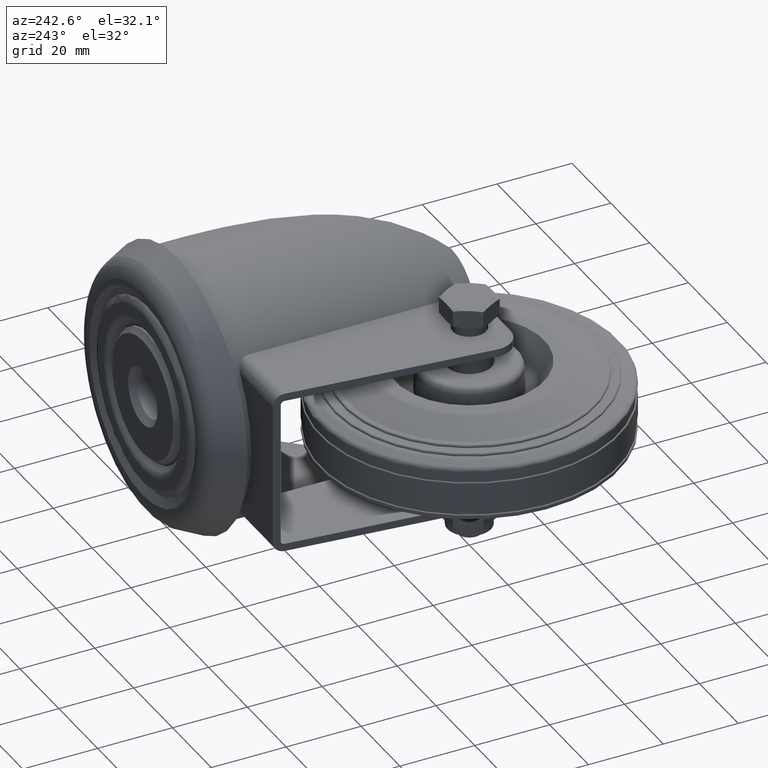
[diagram: clean part render]
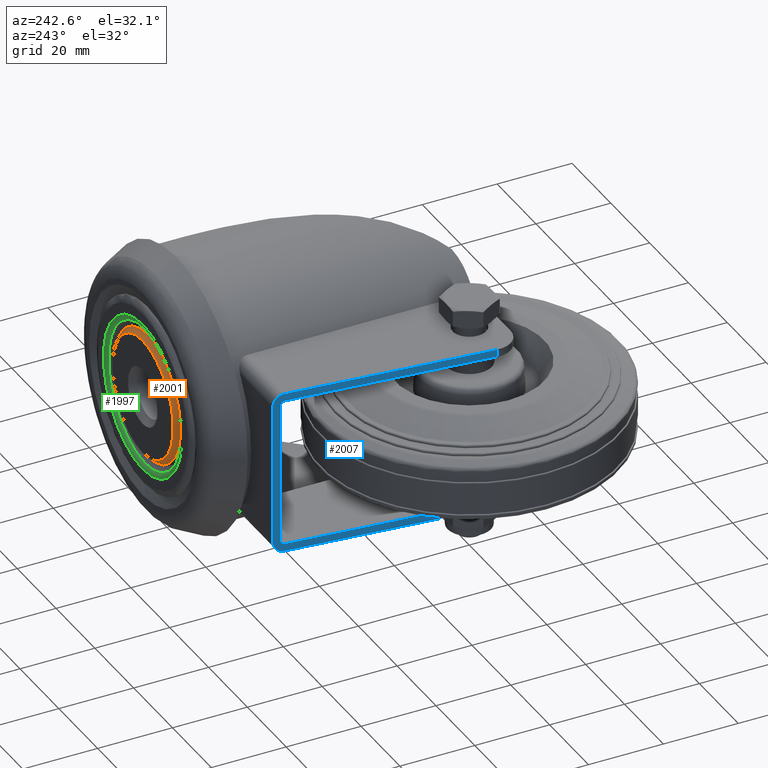
[diagram: same view with three faces highlighted in distinct colors, each labeled with its STEP entity id]
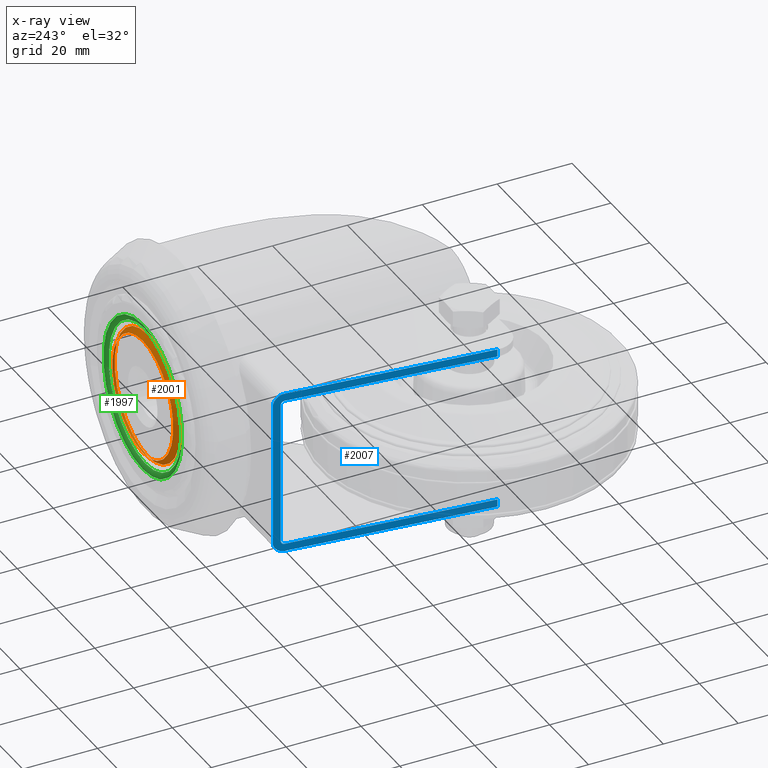
[diagram: x-ray of the same camera — body ghosted, the three highlighted faces saturated]
A machine part, auxiliary view with three faces highlighted in distinct colors.
The next image is the same camera in x-ray (body ghosted, the three faces saturated) — at least one of them is partly hidden behind the body in this view.
Their STEP definitions:

[orange] entity #2001 — the highlighted conical surface has half-angle 45 deg.
#151=CONICAL_SURFACE('',#2282,17.015218613007,0.785398163397443);
#291=FACE_OUTER_BOUND('',#435,.T.);
#435=EDGE_LOOP('',(#1455,#1456,#1457,#1458));
#601=CIRCLE('',#2281,17.015218613007);
#602=CIRCLE('',#2283,15.7);
#740=LINE('',#3504,#818);
#818=VECTOR('',#2661,17.015218613007);
#922=VERTEX_POINT('',#3499);
#923=VERTEX_POINT('',#3503);
#1122=EDGE_CURVE('',#922,#922,#601,.T.);
#1123=EDGE_CURVE('',#922,#923,#740,.T.);
#1124=EDGE_CURVE('',#923,#923,#602,.T.);
#1455=ORIENTED_EDGE('',*,*,#1122,.F.);
#1456=ORIENTED_EDGE('',*,*,#1123,.T.);
#1457=ORIENTED_EDGE('',*,*,#1124,.T.);
#1458=ORIENTED_EDGE('',*,*,#1123,.F.);
#2001=ADVANCED_FACE('',(#291),#151,.T.);
#2281=AXIS2_PLACEMENT_3D('',#3501,#2657,#2658);
#2282=AXIS2_PLACEMENT_3D('',#3502,#2659,#2660);
#2283=AXIS2_PLACEMENT_3D('',#3505,#2662,#2663);
#2657=DIRECTION('center_axis',(0.,-1.,0.));
#2658=DIRECTION('ref_axis',(0.,0.,-1.));
#2659=DIRECTION('center_axis',(0.,-1.,0.));
#2660=DIRECTION('ref_axis',(0.,0.,-1.));
#2661=DIRECTION('',(8.65956056235488E-17,0.707106781186551,-0.707106781186544));
#2662=DIRECTION('center_axis',(0.,-1.,0.));
#2663=DIRECTION('ref_axis',(0.,0.,-1.));
#3499=CARTESIAN_POINT('',(39.,65.684781386993,17.015218613007));
#3501=CARTESIAN_POINT('Origin',(39.,65.684781386993,0.));
#3502=CARTESIAN_POINT('Origin',(39.,65.684781386993,0.));
#3503=CARTESIAN_POINT('',(39.,67.,15.7));
#3504=CARTESIAN_POINT('',(39.,65.684781386993,17.015218613007));
#3505=CARTESIAN_POINT('Origin',(39.,67.,0.));

[blue] entity #2007 — the highlighted planar face has unit normal (0.9945, -0.1045, 0).
#218=ELLIPSE('',#2288,3.0165276615416,2.99999999999998);
#219=ELLIPSE('',#2290,3.0165276615416,2.99999999999999);
#220=ELLIPSE('',#2293,1.00550922051387,1.);
#221=ELLIPSE('',#2294,1.00550922051387,1.);
#297=FACE_OUTER_BOUND('',#442,.T.);
#442=EDGE_LOOP('',(#1478,#1479,#1480,#1481,#1482,#1483,#1484,#1485,#1486,
#1487,#1488,#1489));
#719=LINE('',#3206,#797);
#731=LINE('',#3444,#809);
#733=LINE('',#3451,#811);
#744=LINE('',#3520,#822);
#745=LINE('',#3525,#823);
#746=LINE('',#3527,#824);
#747=LINE('',#3529,#825);
#748=LINE('',#3532,#826);
#797=VECTOR('',#2536,1000.);
#809=VECTOR('',#2588,1000.);
#811=VECTOR('',#2594,1000.);
#822=VECTOR('',#2683,1000.);
#823=VECTOR('',#2688,1000.);
#824=VECTOR('',#2689,1000.);
#825=VECTOR('',#2690,1000.);
#826=VECTOR('',#2693,1000.);
#877=VERTEX_POINT('',#3204);
#878=VERTEX_POINT('',#3205);
#904=VERTEX_POINT('',#3443);
#906=VERTEX_POINT('',#3449);
#907=VERTEX_POINT('',#3450);
#925=VERTEX_POINT('',#3512);
#926=VERTEX_POINT('',#3516);
#927=VERTEX_POINT('',#3522);
#928=VERTEX_POINT('',#3523);
#929=VERTEX_POINT('',#3526);
#930=VERTEX_POINT('',#3528);
#931=VERTEX_POINT('',#3530);
#1058=EDGE_CURVE('',#877,#878,#719,.T.);
#1095=EDGE_CURVE('',#877,#904,#731,.T.);
#1098=EDGE_CURVE('',#906,#907,#733,.T.);
#1127=EDGE_CURVE('',#904,#925,#218,.F.);
#1129=EDGE_CURVE('',#926,#906,#219,.F.);
#1131=EDGE_CURVE('',#925,#926,#744,.T.);
#1132=EDGE_CURVE('',#927,#928,#220,.T.);
#1133=EDGE_CURVE('',#928,#878,#745,.T.);
#1134=EDGE_CURVE('',#929,#907,#746,.T.);
#1135=EDGE_CURVE('',#929,#930,#747,.T.);
#1136=EDGE_CURVE('',#930,#931,#221,.T.);
#1137=EDGE_CURVE('',#931,#927,#748,.T.);
#1478=ORIENTED_EDGE('',*,*,#1132,.T.);
#1479=ORIENTED_EDGE('',*,*,#1133,.T.);
#1480=ORIENTED_EDGE('',*,*,#1058,.F.);
#1481=ORIENTED_EDGE('',*,*,#1095,.T.);
#1482=ORIENTED_EDGE('',*,*,#1127,.T.);
#1483=ORIENTED_EDGE('',*,*,#1131,.T.);
#1484=ORIENTED_EDGE('',*,*,#1129,.T.);
#1485=ORIENTED_EDGE('',*,*,#1098,.T.);
#1486=ORIENTED_EDGE('',*,*,#1134,.F.);
#1487=ORIENTED_EDGE('',*,*,#1135,.T.);
#1488=ORIENTED_EDGE('',*,*,#1136,.T.);
#1489=ORIENTED_EDGE('',*,*,#1137,.T.);
#1938=PLANE('',#2292);
#2007=ADVANCED_FACE('',(#297),#1938,.F.);
#2288=AXIS2_PLACEMENT_3D('',#3513,#2673,#2674);
#2290=AXIS2_PLACEMENT_3D('',#3517,#2678,#2679);
#2292=AXIS2_PLACEMENT_3D('',#3521,#2684,#2685);
#2293=AXIS2_PLACEMENT_3D('',#3524,#2686,#2687);
#2294=AXIS2_PLACEMENT_3D('',#3531,#2691,#2692);
#2536=DIRECTION('',(0.,0.,-1.));
#2588=DIRECTION('',(0.104537317607529,0.994520964699801,0.));
#2594=DIRECTION('',(-0.104537317607529,-0.994520964699801,0.));
#2673=DIRECTION('center_axis',(0.994520964699801,-0.104537317607529,0.));
#2674=DIRECTION('ref_axis',(0.104537317607529,0.994520964699801,0.));
#2678=DIRECTION('center_axis',(0.994520964699801,-0.104537317607529,0.));
#2679=DIRECTION('ref_axis',(0.104537317607529,0.994520964699801,0.));
#2683=DIRECTION('',(0.,0.,-1.));
#2684=DIRECTION('center_axis',(0.994520964699801,-0.104537317607529,0.));
#2685=DIRECTION('ref_axis',(0.104537317607529,0.994520964699801,0.));
#2686=DIRECTION('center_axis',(0.994520964699801,-0.104537317607529,0.));
#2687=DIRECTION('ref_axis',(0.104537317607529,0.994520964699801,0.));
#2688=DIRECTION('',(-0.104537317607529,-0.994520964699801,0.));
#2689=DIRECTION('',(0.,0.,-1.));
#2690=DIRECTION('',(0.104537317607529,0.994520964699801,0.));
#2691=DIRECTION('center_axis',(0.994520964699801,-0.104537317607529,0.));
#2692=DIRECTION('ref_axis',(0.104537317607529,0.994520964699801,0.));
#2693=DIRECTION('',(0.,0.,1.));
#3204=CARTESIAN_POINT('',(-12.0830815783644,-1.22277609982297,22.));
#3205=CARTESIAN_POINT('',(-12.0830815783644,-1.22277609982297,20.));
#3206=CARTESIAN_POINT('',(-12.0830815783644,-1.22277609982297,50.));
#3443=CARTESIAN_POINT('',(-6.42033971022648,52.65,22.));
#3444=CARTESIAN_POINT('',(-6.61245113043778,50.8223384593079,22.));
#3449=CARTESIAN_POINT('',(-6.42033971022648,52.65,-22.));
#3450=CARTESIAN_POINT('',(-12.0830815783644,-1.22277609982297,-22.));
#3451=CARTESIAN_POINT('',(-14.1654759752082,-21.0337386520644,-22.));
#3512=CARTESIAN_POINT('',(-6.105,55.65,19.));
#3513=CARTESIAN_POINT('Origin',(-6.42033971022647,52.65,19.));
#3516=CARTESIAN_POINT('',(-6.105,55.65,-19.));
#3517=CARTESIAN_POINT('Origin',(-6.42033971022647,52.65,-19.));
#3520=CARTESIAN_POINT('',(-6.105,55.65,-19.));
#3521=CARTESIAN_POINT('Origin',(-6.105,55.65,50.));
#3522=CARTESIAN_POINT('',(-6.31522647348432,53.65,19.));
#3523=CARTESIAN_POINT('',(-6.42033971022648,52.65,20.));
#3524=CARTESIAN_POINT('Origin',(-6.42033971022648,52.65,19.));
#3525=CARTESIAN_POINT('',(-6.105,55.65,20.));
#3526=CARTESIAN_POINT('',(-12.0830815783644,-1.22277609982297,-20.));
#3527=CARTESIAN_POINT('',(-12.0830815783644,-1.22277609982297,50.));
#3528=CARTESIAN_POINT('',(-6.42033971022648,52.65,-20.));
#3529=CARTESIAN_POINT('',(-6.105,55.65,-20.));
#3530=CARTESIAN_POINT('',(-6.31522647348432,53.65,-19.));
#3531=CARTESIAN_POINT('Origin',(-6.42033971022648,52.65,-19.));
#3532=CARTESIAN_POINT('',(-6.31522647348432,53.65,50.));

[green] entity #1997 — the highlighted toroidal blend (fillet) surface has major radius 20.2454 mm and minor (blend) radius 2 mm.
#129=TOROIDAL_SURFACE('',#2272,20.2454148197006,2.00000000000002);
#287=FACE_OUTER_BOUND('',#430,.T.);
#430=EDGE_LOOP('',(#1439,#1440,#1441,#1442,#1443));
#595=CIRCLE('',#2271,20.2454148197005);
#596=CIRCLE('',#2273,2.00000000000002);
#597=CIRCLE('',#2274,18.7827074164622);
#598=CIRCLE('',#2275,18.7827074164622);
#917=VERTEX_POINT('',#3483);
#918=VERTEX_POINT('',#3486);
#919=VERTEX_POINT('',#3488);
#1114=EDGE_CURVE('',#917,#917,#595,.T.);
#1115=EDGE_CURVE('',#917,#918,#596,.T.);
#1116=EDGE_CURVE('',#918,#919,#597,.T.);
#1117=EDGE_CURVE('',#919,#918,#598,.T.);
#1439=ORIENTED_EDGE('',*,*,#1114,.F.);
#1440=ORIENTED_EDGE('',*,*,#1115,.T.);
#1441=ORIENTED_EDGE('',*,*,#1116,.T.);
#1442=ORIENTED_EDGE('',*,*,#1117,.T.);
#1443=ORIENTED_EDGE('',*,*,#1115,.F.);
#1997=ADVANCED_FACE('',(#287),#129,.T.);
#2271=AXIS2_PLACEMENT_3D('',#3484,#2635,#2636);
#2272=AXIS2_PLACEMENT_3D('',#3485,#2637,#2638);
#2273=AXIS2_PLACEMENT_3D('',#3487,#2639,#2640);
#2274=AXIS2_PLACEMENT_3D('',#3489,#2641,#2642);
#2275=AXIS2_PLACEMENT_3D('',#3490,#2643,#2644);
#2635=DIRECTION('center_axis',(0.,-1.,0.));
#2636=DIRECTION('ref_axis',(0.,0.,-1.));
#2637=DIRECTION('center_axis',(0.,-1.,0.));
#2638=DIRECTION('ref_axis',(0.,0.,-1.));
#2639=DIRECTION('center_axis',(-1.,0.,-1.99631795338236E-16));
#2640=DIRECTION('ref_axis',(-1.99631795338236E-16,0.,1.));
#2641=DIRECTION('center_axis',(0.,-1.,0.));
#2642=DIRECTION('ref_axis',(0.,0.,-1.));
#2643=DIRECTION('center_axis',(0.,-1.,0.));
#2644=DIRECTION('ref_axis',(0.,0.,-1.));
#3483=CARTESIAN_POINT('',(39.,67.0000000000001,20.2454148197005));
#3484=CARTESIAN_POINT('Origin',(39.,67.0000000000001,0.));
#3485=CARTESIAN_POINT('Origin',(39.,65.0000000000001,0.));
#3486=CARTESIAN_POINT('',(39.,66.363996720125,18.7827074164622));
#3487=CARTESIAN_POINT('Origin',(39.,65.0000000000001,20.2454148197006));
#3488=CARTESIAN_POINT('',(39.,66.363996720125,-18.7827074164622));
#3489=CARTESIAN_POINT('Origin',(39.,66.363996720125,0.));
#3490=CARTESIAN_POINT('Origin',(39.,66.363996720125,0.));